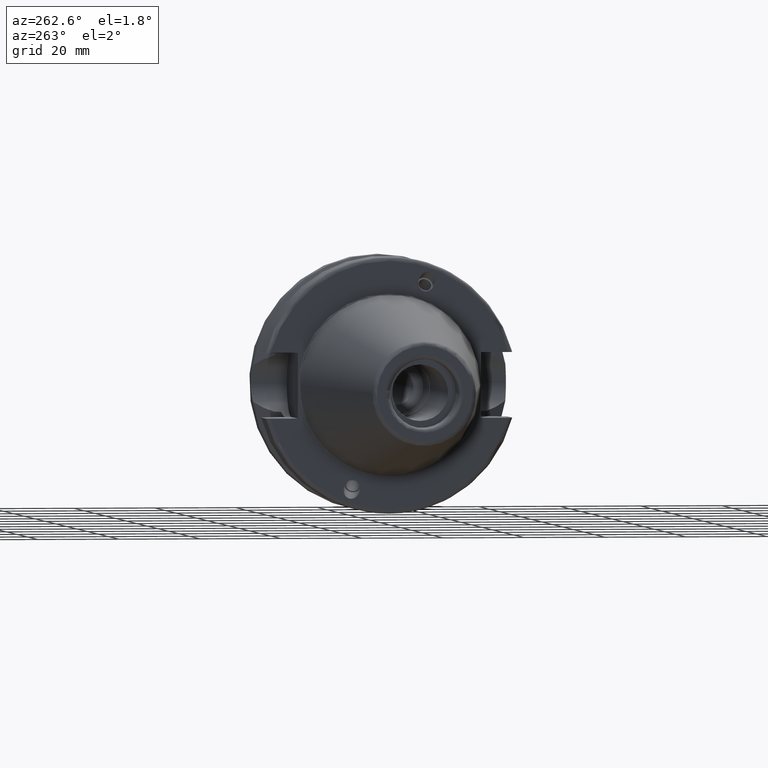
[diagram: clean part render]
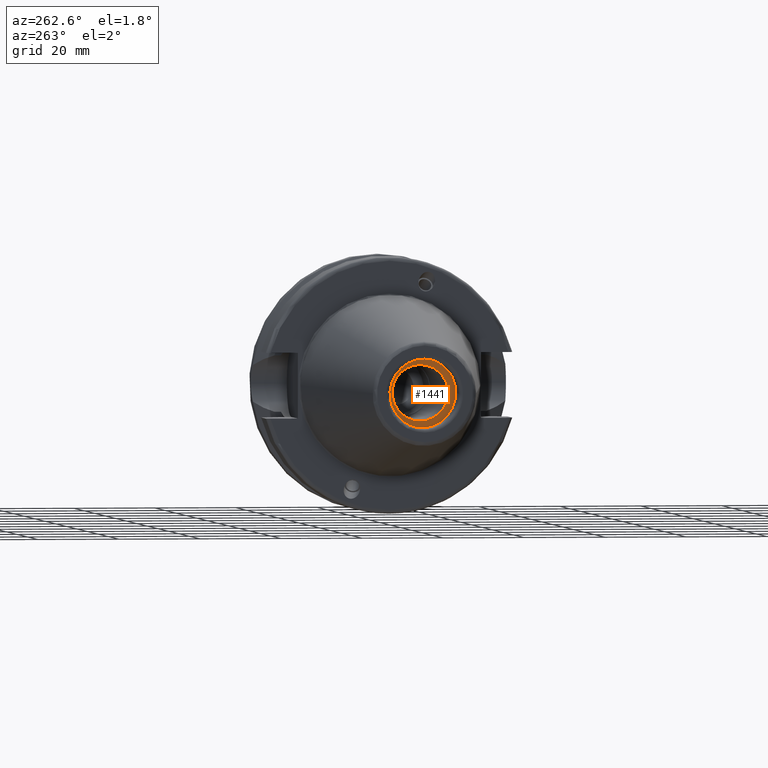
[diagram: same view with one face highlighted and labeled with its STEP entity id]
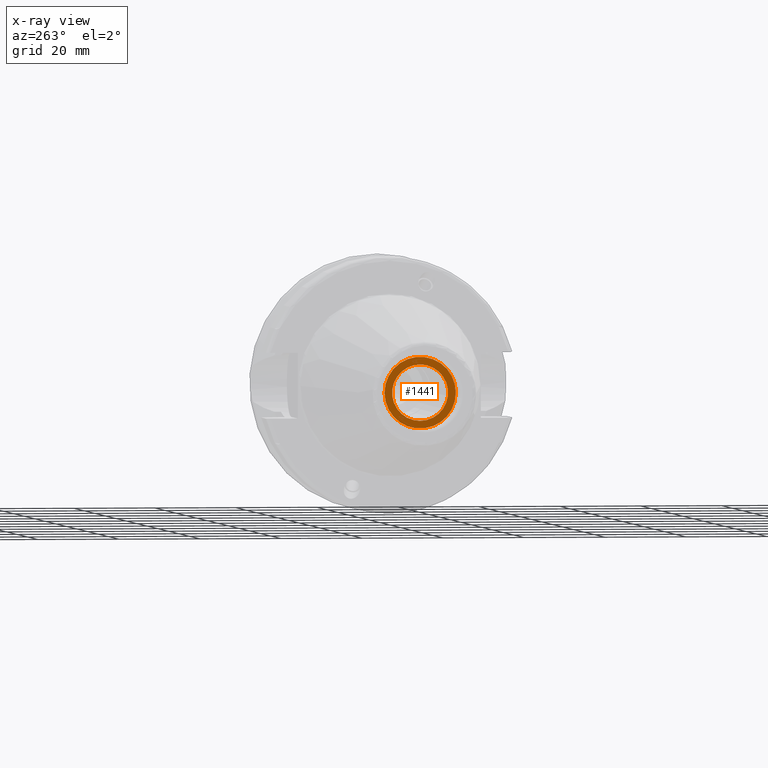
[diagram: x-ray of the same camera — body ghosted, the highlighted face saturated]
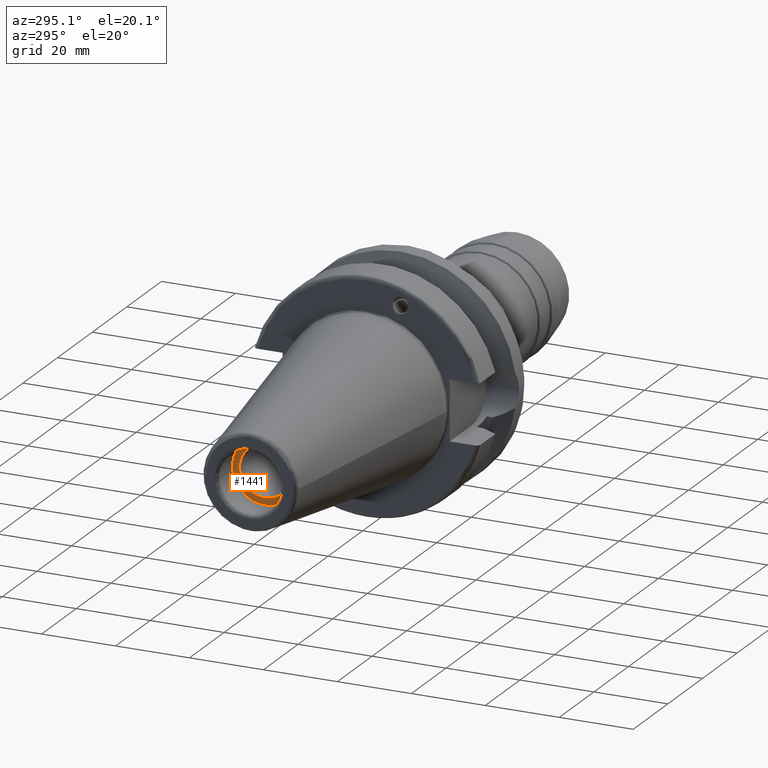
[diagram: same view with one face highlighted and labeled with its STEP entity id]
A machine part, auxiliary view. The second image highlights one B-rep face of the part: STEP entity #1441.
The next image is the same camera in x-ray: the body ghosted, the highlighted face saturated — about 0% of this face is hidden behind the body in this view.
A second angle (auxiliary view) of the same face is appended — the face is thin or edge-on in the first view.
In plain terms, the highlighted planar face has unit normal (-1, 0, 0).
Its self-contained STEP definition (entity closure, byte-faithful):
#53=PLANE('',#1642);
#102=FACE_BOUND('',#276,.T.);
#177=FACE_OUTER_BOUND('',#275,.T.);
#275=EDGE_LOOP('',(#1249));
#276=EDGE_LOOP('',(#1250));
#524=CIRCLE('',#1610,6.9175);
#539=CIRCLE('',#1643,8.8);
#635=VERTEX_POINT('',#2547);
#683=VERTEX_POINT('',#2782);
#815=EDGE_CURVE('',#635,#635,#524,.T.);
#881=EDGE_CURVE('',#683,#683,#539,.T.);
#1249=ORIENTED_EDGE('',*,*,#881,.F.);
#1250=ORIENTED_EDGE('',*,*,#815,.T.);
#1441=ADVANCED_FACE('',(#177,#102),#53,.T.);
#1610=AXIS2_PLACEMENT_3D('',#2548,#1974,#1975);
#1642=AXIS2_PLACEMENT_3D('',#2781,#2070,#2071);
#1643=AXIS2_PLACEMENT_3D('',#2783,#2072,#2073);
#1974=DIRECTION('center_axis',(1.,0.,0.));
#1975=DIRECTION('ref_axis',(0.,0.,1.));
#2070=DIRECTION('center_axis',(-1.,0.,0.));
#2071=DIRECTION('ref_axis',(0.,0.,1.));
#2072=DIRECTION('center_axis',(1.,0.,0.));
#2073=DIRECTION('ref_axis',(0.,0.,-1.));
#2547=CARTESIAN_POINT('',(-56.4,8.47149423310182E-16,-6.9175));
#2548=CARTESIAN_POINT('Origin',(-56.4,0.,0.));
#2781=CARTESIAN_POINT('Origin',(-56.4,8.8,0.));
#2782=CARTESIAN_POINT('',(-56.4,-8.8,-1.07768918324967E-15));
#2783=CARTESIAN_POINT('Origin',(-56.4,0.,0.));